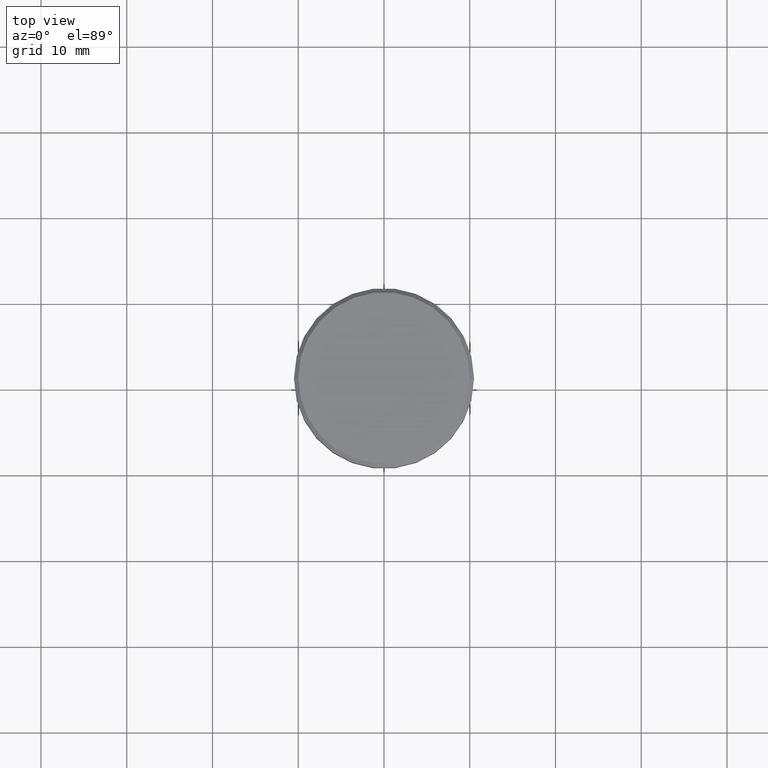
[diagram: clean part render]
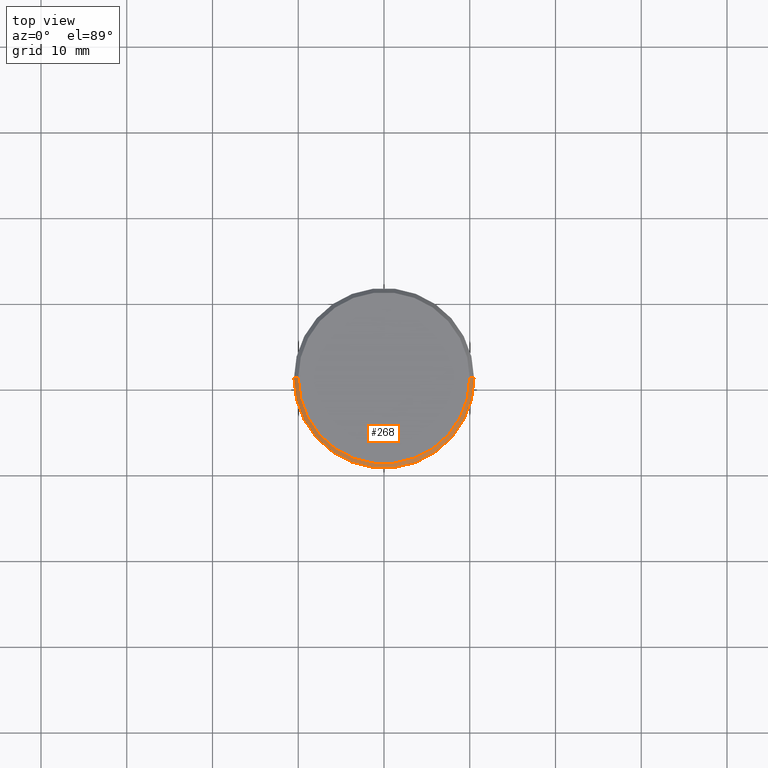
[diagram: same view with one face highlighted and labeled with its STEP entity id]
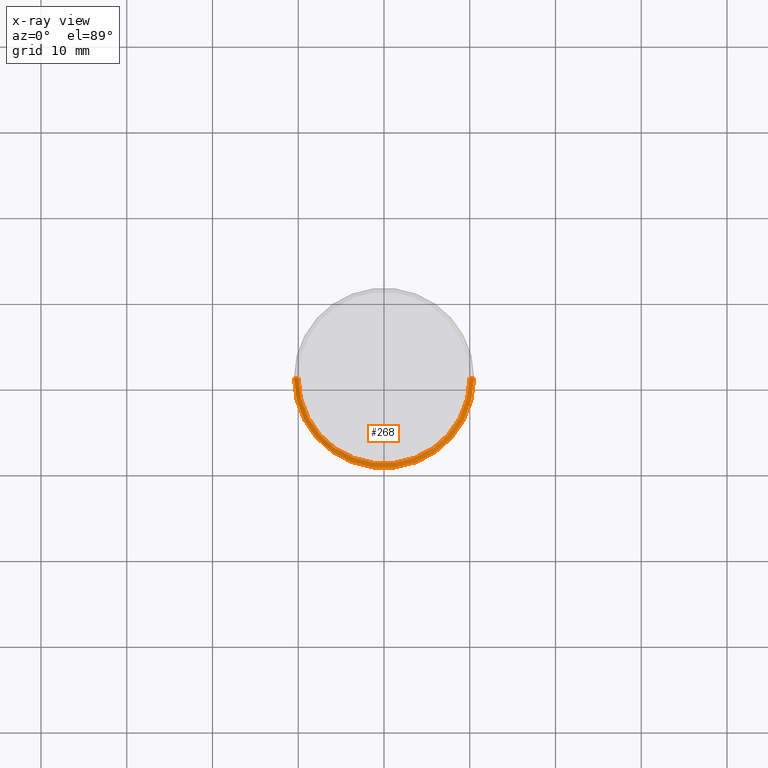
[diagram: x-ray of the same camera — body ghosted, the highlighted face saturated]
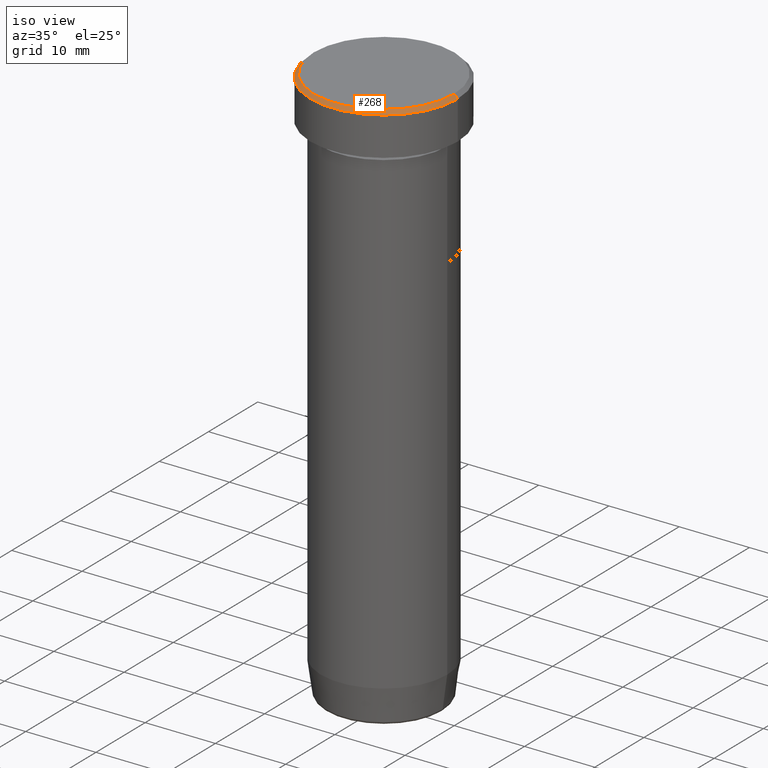
[diagram: same view with one face highlighted and labeled with its STEP entity id]
A machine part, top view. The second image highlights one B-rep face of the part: STEP entity #268.
The next image is the same camera in x-ray: the body ghosted, the highlighted face saturated — about 0% of this face is hidden behind the body in this view.
A second angle (iso view) of the same face is appended — the face is thin or edge-on in the first view.
In plain terms, the highlighted conical surface has half-angle 45 deg.
Its self-contained STEP definition (entity closure, byte-faithful):
#15 = CIRCLE ( 'NONE', #176, 10.50000000000000000 ) ;
#21 = DIRECTION ( 'NONE',  ( -0.7071067811865450192, 0.000000000000000000, -0.7071067811865500152 ) ) ;
#53 = FACE_OUTER_BOUND ( 'NONE', #579, .T. ) ;
#61 = EDGE_CURVE ( 'NONE', #228, #456, #478, .T. ) ;
#74 = EDGE_CURVE ( 'NONE', #134, #591, #120, .T. ) ;
#78 = DIRECTION ( 'NONE',  ( 0.7071067811865450192, 8.659560562354902043E-17, -0.7071067811865500152 ) ) ;
#104 = ORIENTED_EDGE ( 'NONE', *, *, #152, .F. ) ;
#106 = DIRECTION ( 'NONE',  ( -0.000000000000000000, -0.000000000000000000, 1.000000000000000000 ) ) ;
#120 = LINE ( 'NONE', #350, #533 ) ;
#134 = VERTEX_POINT ( 'NONE', #250 ) ;
#152 = EDGE_CURVE ( 'NONE', #456, #591, #15, .T. ) ;
#165 = CARTESIAN_POINT ( 'NONE',  ( 0.000000000000000000, 0.000000000000000000, -0.5000000000000023315 ) ) ;
#176 = AXIS2_PLACEMENT_3D ( 'NONE', #165, #576, #481 ) ;
#201 = AXIS2_PLACEMENT_3D ( 'NONE', #327, #503, #334 ) ;
#228 = VERTEX_POINT ( 'NONE', #509 ) ;
#233 = CIRCLE ( 'NONE', #282, 10.00000000000000178 ) ;
#250 = CARTESIAN_POINT ( 'NONE',  ( -10.00000000000000178, 0.000000000000000000, 0.000000000000000000 ) ) ;
#268 = ADVANCED_FACE ( 'NONE', ( #53 ), #562, .T. ) ;
#277 = EDGE_CURVE ( 'NONE', #134, #228, #233, .T. ) ;
#282 = AXIS2_PLACEMENT_3D ( 'NONE', #417, #106, #292 ) ;
#292 = DIRECTION ( 'NONE',  ( 1.000000000000000000, 0.000000000000000000, 0.000000000000000000 ) ) ;
#320 = CARTESIAN_POINT ( 'NONE',  ( -10.50000000000000000, 1.285879139104720831E-15, -0.5000000000000023315 ) ) ;
#327 = CARTESIAN_POINT ( 'NONE',  ( 0.000000000000000000, 0.000000000000000000, 0.000000000000000000 ) ) ;
#329 = ORIENTED_EDGE ( 'NONE', *, *, #61, .F. ) ;
#334 = DIRECTION ( 'NONE',  ( -1.000000000000000000, 0.000000000000000000, 0.000000000000000000 ) ) ;
#337 = VECTOR ( 'NONE', #78, 1000.000000000000000 ) ;
#350 = CARTESIAN_POINT ( 'NONE',  ( -10.00000000000000178, 0.000000000000000000, 0.000000000000000000 ) ) ;
#417 = CARTESIAN_POINT ( 'NONE',  ( 0.000000000000000000, 0.000000000000000000, 0.000000000000000000 ) ) ;
#456 = VERTEX_POINT ( 'NONE', #482 ) ;
#473 = CARTESIAN_POINT ( 'NONE',  ( 10.00000000000000178, 1.224646799147353454E-15, 0.000000000000000000 ) ) ;
#478 = LINE ( 'NONE', #473, #337 ) ;
#481 = DIRECTION ( 'NONE',  ( 1.000000000000000000, 0.000000000000000000, 0.000000000000000000 ) ) ;
#482 = CARTESIAN_POINT ( 'NONE',  ( 10.50000000000000000, 0.000000000000000000, -0.5000000000000023315 ) ) ;
#503 = DIRECTION ( 'NONE',  ( 0.000000000000000000, 0.000000000000000000, -1.000000000000000000 ) ) ;
#509 = CARTESIAN_POINT ( 'NONE',  ( 10.00000000000000178, 1.255262969126037241E-15, 0.000000000000000000 ) ) ;
#516 = ORIENTED_EDGE ( 'NONE', *, *, #277, .F. ) ;
#533 = VECTOR ( 'NONE', #21, 1000.000000000000000 ) ;
#562 = CONICAL_SURFACE ( 'NONE', #201, 10.00000000000000178, 0.7853981633974447263 ) ;
#576 = DIRECTION ( 'NONE',  ( 0.000000000000000000, 0.000000000000000000, -1.000000000000000000 ) ) ;
#579 = EDGE_LOOP ( 'NONE', ( #329, #516, #594, #104 ) ) ;
#591 = VERTEX_POINT ( 'NONE', #320 ) ;
#594 = ORIENTED_EDGE ( 'NONE', *, *, #74, .T. ) ;